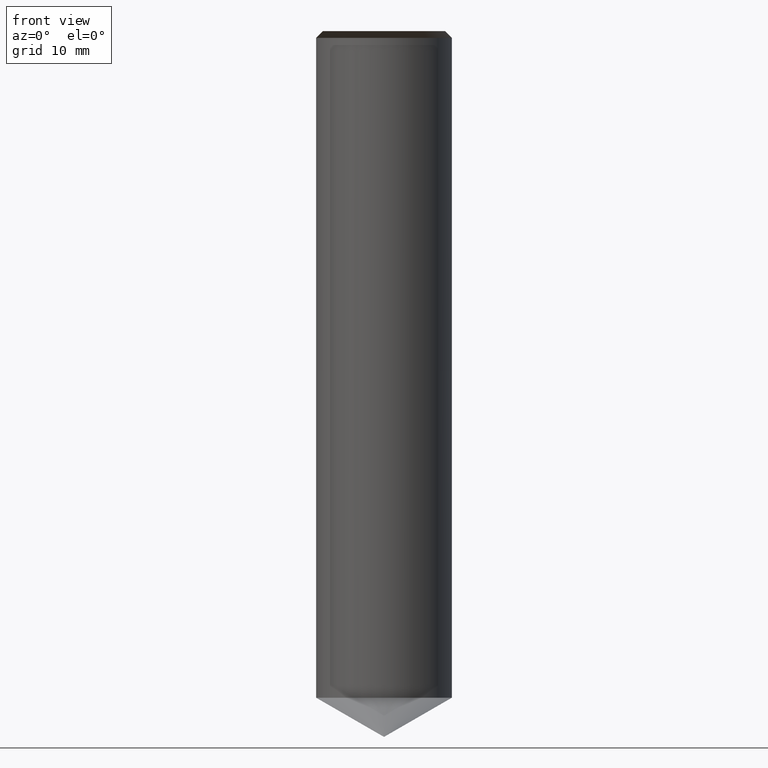
[diagram: clean part render]
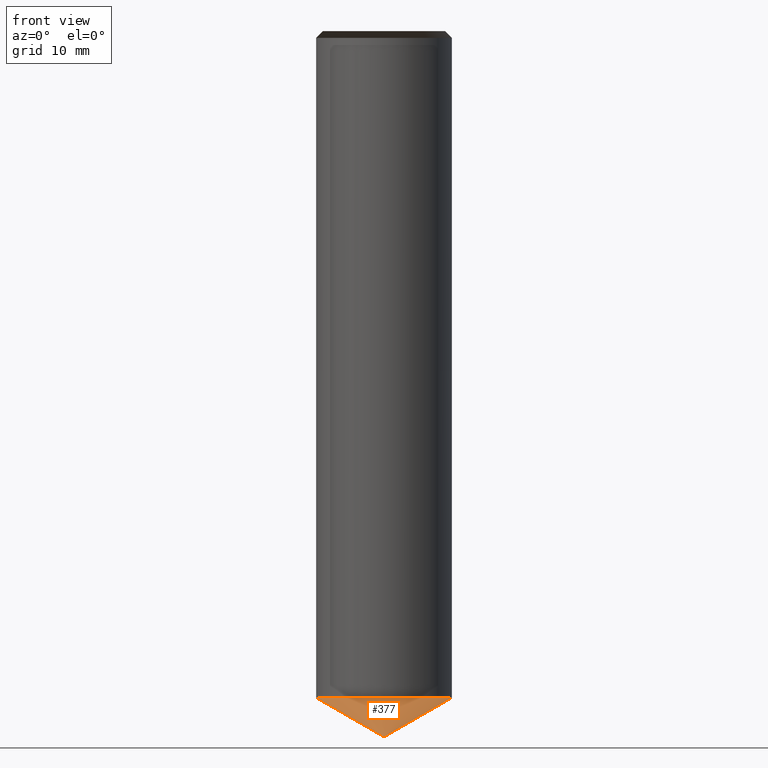
[diagram: same view with one face highlighted and labeled with its STEP entity id]
A machine part, front view. The second image highlights one B-rep face of the part: STEP entity #377.
In plain terms, the highlighted face is a freeform B-spline surface patch.
Its self-contained STEP definition (entity closure, byte-faithful):
#260=CARTESIAN_POINT('',(0.0,0.0,-54.0));
#261=CARTESIAN_POINT('',(10.0,0.0,-48.226497308104));
#265=CARTESIAN_POINT('',(-10.0,0.0,-48.226497308104));
#272=CARTESIAN_POINT('',(-10.0,-10.0,-48.226497308104));
#273=CARTESIAN_POINT('',(0.0,-10.0,-48.226497308104));
#274=CARTESIAN_POINT('',(10.0,-10.0,-48.226497308104));
#362=(
BOUNDED_SURFACE()
B_SPLINE_SURFACE(1,2,(
(#260,#260,#260,#260,#260),
(#265,#272,#273,#274,#261)
), .UNSPECIFIED.,.F.,.F.,.F.)
B_SPLINE_SURFACE_WITH_KNOTS((2,2),(3,2,3),(
0.0,1.0),(
0.0,0.5,1.0), .UNSPECIFIED.)
GEOMETRIC_REPRESENTATION_ITEM()
RATIONAL_B_SPLINE_SURFACE(((1.0,0.707106781187,1.0,0.707106781187,1.0),
(1.0,0.707106781187,1.0,0.707106781187,1.0)
))
REPRESENTATION_ITEM('')
SURFACE()
);
#363=(
BOUNDED_CURVE()
B_SPLINE_CURVE(1,(#265,#260),.UNSPECIFIED.,.F.,.F.)
B_SPLINE_CURVE_WITH_KNOTS((2,2),
(0.0,1.0),.UNSPECIFIED.)
CURVE()
GEOMETRIC_REPRESENTATION_ITEM()
RATIONAL_B_SPLINE_CURVE((1.0,1.0))
REPRESENTATION_ITEM('')
);
#364=(
BOUNDED_CURVE()
B_SPLINE_CURVE(1,(#260,#261),.UNSPECIFIED.,.F.,.F.)
B_SPLINE_CURVE_WITH_KNOTS((2,2),
(0.0,1.0),.UNSPECIFIED.)
CURVE()
GEOMETRIC_REPRESENTATION_ITEM()
RATIONAL_B_SPLINE_CURVE((1.0,1.0))
REPRESENTATION_ITEM('')
);
#365=(
BOUNDED_CURVE()
B_SPLINE_CURVE(2,(#261,#274,#273,#272,#265),.UNSPECIFIED.,.F.,.F.)
B_SPLINE_CURVE_WITH_KNOTS((3,2,3),
(0.0,0.5,1.0),.UNSPECIFIED.)
CURVE()
GEOMETRIC_REPRESENTATION_ITEM()
RATIONAL_B_SPLINE_CURVE((1.0,0.707106781187,1.0,0.707106781187,1.0))
REPRESENTATION_ITEM('')
);
#366=VERTEX_POINT('',#260);
#367=VERTEX_POINT('',#261);
#368=VERTEX_POINT('',#265);
#369=EDGE_CURVE('',#368,#366,#363,.T.);
#370=EDGE_CURVE('',#366,#367,#364,.T.);
#371=EDGE_CURVE('',#367,#368,#365,.T.);
#372=ORIENTED_EDGE('',*,*,#369,.T.);
#373=ORIENTED_EDGE('',*,*,#370,.T.);
#374=ORIENTED_EDGE('',*,*,#371,.T.);
#375=EDGE_LOOP('',(#372,#373,#374));
#376=FACE_OUTER_BOUND('',#375,.T.);
#377=ADVANCED_FACE('',(#376),#362,.T.);